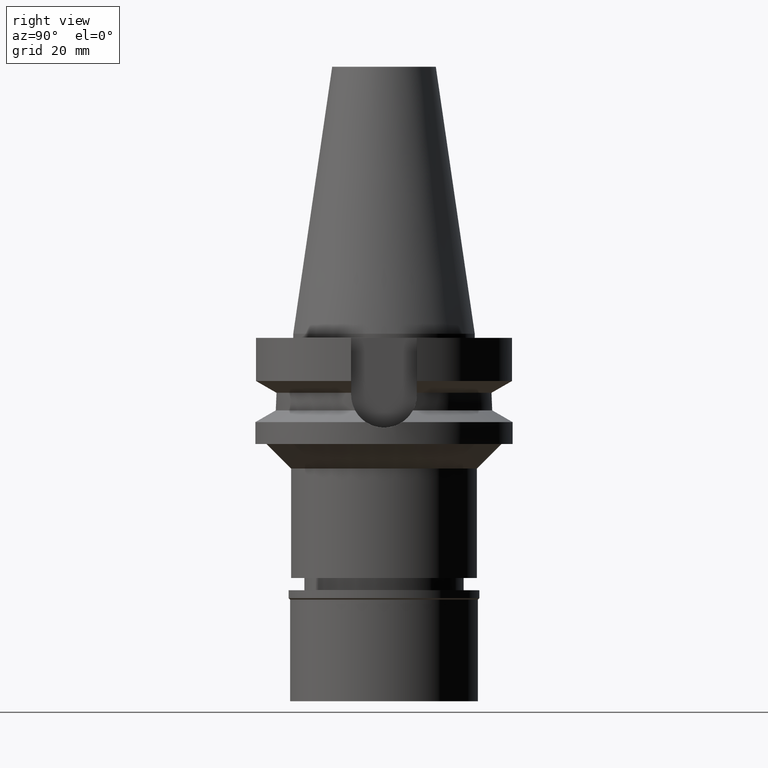
[diagram: clean part render]
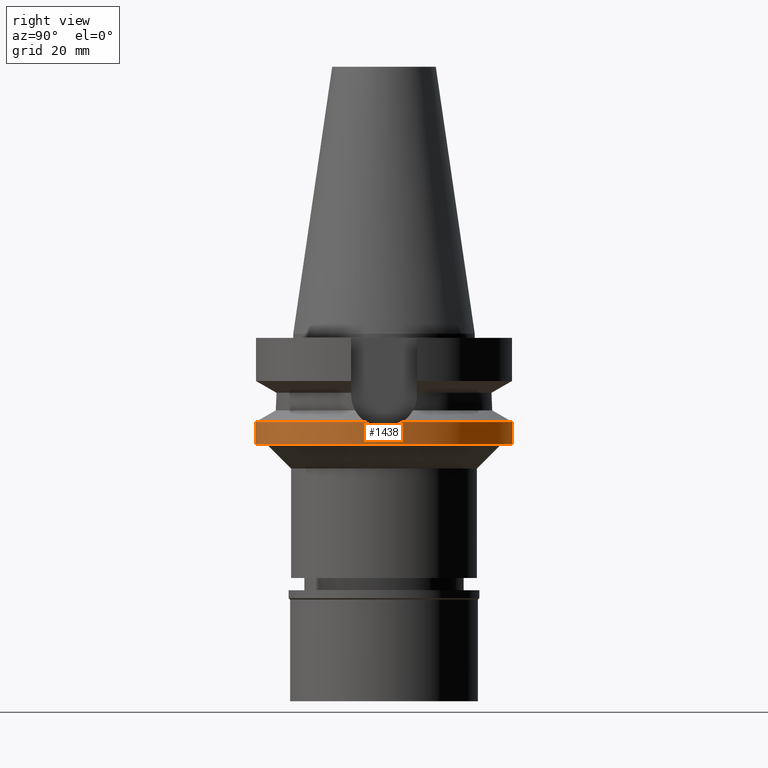
[diagram: same view with one face highlighted and labeled with its STEP entity id]
A machine part, right view. The second image highlights one B-rep face of the part: STEP entity #1438.
In plain terms, the highlighted cylindrical surface (partial cylindrical patch) has radius 31.5 mm, axis along (0, 0, -1).
Its self-contained STEP definition (entity closure, byte-faithful):
#71 = VERTEX_POINT ( 'NONE', #1878 ) ;
#88 = EDGE_CURVE ( 'NONE', #755, #71, #2186, .T. ) ;
#133 = CYLINDRICAL_SURFACE ( 'NONE', #2300, 31.50000000000000000 ) ;
#140 = B_SPLINE_CURVE_WITH_KNOTS ( 'NONE', 3,
 ( #202, #3023, #2805, #1181, #674, #657, #2070, #1654, #1153, #2551, #2099, #3034 ),
 .UNSPECIFIED., .F., .F.,
 ( 4, 2, 2, 2, 2, 4 ),
 ( 0.0000000000000000000, 0.2500000000000002776, 0.5000000000000005551, 0.6250000000000005551, 0.7500000000000005551, 1.000000000000000000 ),
 .UNSPECIFIED. ) ;
#202 = CARTESIAN_POINT ( 'NONE',  ( 31.50000000000000000, 3.533862756661999907E-11, -23.00000000000000000 ) ) ;
#216 = VERTEX_POINT ( 'NONE', #897 ) ;
#301 = CARTESIAN_POINT ( 'NONE',  ( 0.0000000000000000000, -31.50000000000000000, -21.63449434733000132 ) ) ;
#351 = DIRECTION ( 'NONE',  ( 0.0000000000000000000, 0.0000000000000000000, -1.000000000000000000 ) ) ;
#415 = CARTESIAN_POINT ( 'NONE',  ( 0.0000000000000000000, 0.0000000000000000000, -21.63449434733000132 ) ) ;
#471 = EDGE_CURVE ( 'NONE', #2976, #71, #1503, .T. ) ;
#503 = AXIS2_PLACEMENT_3D ( 'NONE', #415, #351, #2269 ) ;
#528 = CARTESIAN_POINT ( 'NONE',  ( 0.0000000000000000000, 0.0000000000000000000, -27.00000000000000000 ) ) ;
#530 = DIRECTION ( 'NONE',  ( 0.0000000000000000000, 0.0000000000000000000, -1.000000000000000000 ) ) ;
#532 = CARTESIAN_POINT ( 'NONE',  ( 31.17899877608999759, 4.485536235554000051, -21.63449434733000132 ) ) ;
#541 = DIRECTION ( 'NONE',  ( 0.0000000000000000000, 0.0000000000000000000, 1.000000000000000000 ) ) ;
#637 = ORIENTED_EDGE ( 'NONE', *, *, #471, .F. ) ;
#657 = CARTESIAN_POINT ( 'NONE',  ( 31.39916047243347563, -2.525684878205869399, -22.59611919899747434 ) ) ;
#674 = CARTESIAN_POINT ( 'NONE',  ( 31.44157562882537960, -1.955191010453578793, -22.76907076798721263 ) ) ;
#678 = ORIENTED_EDGE ( 'NONE', *, *, #1269, .T. ) ;
#709 = VECTOR ( 'NONE', #1945, 1000.000000000000000 ) ;
#755 = VERTEX_POINT ( 'NONE', #827 ) ;
#761 = CARTESIAN_POINT ( 'NONE',  ( 31.49999999999910472, 0.7894177393607471060, -23.00000000000000000 ) ) ;
#767 = CARTESIAN_POINT ( 'NONE',  ( 0.0000000000000000000, 31.50000000000000000, -21.63449434733000132 ) ) ;
#798 = EDGE_CURVE ( 'NONE', #2706, #1239, #2634, .T. ) ;
#827 = CARTESIAN_POINT ( 'NONE',  ( 0.0000000000000000000, -31.50000000000000000, -27.00000000000000000 ) ) ;
#897 = CARTESIAN_POINT ( 'NONE',  ( 31.17899877608999759, 4.485536235554000051, -21.63449434733000132 ) ) ;
#900 = ORIENTED_EDGE ( 'NONE', *, *, #1971, .T. ) ;
#1047 = ORIENTED_EDGE ( 'NONE', *, *, #798, .T. ) ;
#1065 = ORIENTED_EDGE ( 'NONE', *, *, #2061, .T. ) ;
#1153 = CARTESIAN_POINT ( 'NONE',  ( 31.33092021549410688, -3.264435135920803699, -22.31109383950983727 ) ) ;
#1181 = CARTESIAN_POINT ( 'NONE',  ( 31.46324907217566036, -1.570849904353151416, -22.85516693578523117 ) ) ;
#1189 = CARTESIAN_POINT ( 'NONE',  ( 31.50000000000000000, 3.533862756661999907E-11, -23.00000000000000000 ) ) ;
#1221 = CARTESIAN_POINT ( 'NONE',  ( 31.50000000000000000, 3.533862756661999907E-11, -23.00000000000000000 ) ) ;
#1229 = DIRECTION ( 'NONE',  ( 0.0000000000000000000, -1.000000000000000000, 0.0000000000000000000 ) ) ;
#1239 = VERTEX_POINT ( 'NONE', #301 ) ;
#1269 = EDGE_CURVE ( 'NONE', #1239, #755, #2164, .T. ) ;
#1271 = CARTESIAN_POINT ( 'NONE',  ( 0.0000000000000000000, -31.50000000000000000, -21.63449434733000132 ) ) ;
#1360 = B_SPLINE_CURVE_WITH_KNOTS ( 'NONE', 3,
 ( #532, #2646, #2198, #2460, #761, #1221 ),
 .UNSPECIFIED., .F., .F.,
 ( 4, 2, 4 ),
 ( 0.0000000000000000000, 0.5000000000000000000, 1.000000000000000000 ),
 .UNSPECIFIED. ) ;
#1438 = ADVANCED_FACE ( 'NONE', ( #1803 ), #133, .T. ) ;
#1503 = LINE ( 'NONE', #767, #709 ) ;
#1544 = DIRECTION ( 'NONE',  ( 0.0000000000000000000, 0.0000000000000000000, -1.000000000000000000 ) ) ;
#1646 = AXIS2_PLACEMENT_3D ( 'NONE', #528, #541, #1229 ) ;
#1654 = CARTESIAN_POINT ( 'NONE',  ( 31.34929754645547106, -3.083187842819544500, -22.38882524538810870 ) ) ;
#1664 = CIRCLE ( 'NONE', #2699, 31.50000000000000000 ) ;
#1696 = DIRECTION ( 'NONE',  ( 0.0000000000000000000, -1.099151708819000049E-13, -1.000000000000000000 ) ) ;
#1803 = FACE_OUTER_BOUND ( 'NONE', #1990, .T. ) ;
#1878 = CARTESIAN_POINT ( 'NONE',  ( 0.0000000000000000000, 31.50000000000000000, -27.00000000000000000 ) ) ;
#1945 = DIRECTION ( 'NONE',  ( 0.0000000000000000000, 1.099151708819000049E-13, -1.000000000000000000 ) ) ;
#1971 = EDGE_CURVE ( 'NONE', #2976, #216, #1664, .T. ) ;
#1990 = EDGE_LOOP ( 'NONE', ( #1047, #678, #2388, #637, #900, #1065, #2471 ) ) ;
#2061 = EDGE_CURVE ( 'NONE', #216, #2563, #1360, .T. ) ;
#2070 = CARTESIAN_POINT ( 'NONE',  ( 31.38347861103886416, -2.713258963087467723, -22.53160019907696210 ) ) ;
#2099 = CARTESIAN_POINT ( 'NONE',  ( 31.22673699980570206, -4.153707455094773238, -21.85716339923033402 ) ) ;
#2164 = LINE ( 'NONE', #1271, #2339 ) ;
#2170 = CARTESIAN_POINT ( 'NONE',  ( 31.17899877608999759, -4.485536235554000051, -21.63449434733000132 ) ) ;
#2186 = CIRCLE ( 'NONE', #1646, 31.50000000000000000 ) ;
#2198 = CARTESIAN_POINT ( 'NONE',  ( 31.35693800405108789, 3.093611842330725725, -22.42394393125410090 ) ) ;
#2223 = CARTESIAN_POINT ( 'NONE',  ( 0.0000000000000000000, 0.0000000000000000000, 0.0000000000000000000 ) ) ;
#2269 = DIRECTION ( 'NONE',  ( 0.9898094849552905306, -0.1423979757318985240, 0.0000000000000000000 ) ) ;
#2300 = AXIS2_PLACEMENT_3D ( 'NONE', #2223, #530, #2317 ) ;
#2317 = DIRECTION ( 'NONE',  ( 0.0000000000000000000, -1.000000000000000000, 0.0000000000000000000 ) ) ;
#2339 = VECTOR ( 'NONE', #1696, 1000.000000000000000 ) ;
#2388 = ORIENTED_EDGE ( 'NONE', *, *, #88, .T. ) ;
#2460 = CARTESIAN_POINT ( 'NONE',  ( 31.46967100746108414, 1.577276736363816712, -22.88364154530529504 ) ) ;
#2471 = ORIENTED_EDGE ( 'NONE', *, *, #2970, .T. ) ;
#2489 = DIRECTION ( 'NONE',  ( 0.0000000000000000000, 1.000000000000000000, 0.0000000000000000000 ) ) ;
#2551 = CARTESIAN_POINT ( 'NONE',  ( 31.27122531430636698, -3.806948984035791295, -22.05414690376283460 ) ) ;
#2563 = VERTEX_POINT ( 'NONE', #1189 ) ;
#2634 = CIRCLE ( 'NONE', #503, 31.50000000000001421 ) ;
#2646 = CARTESIAN_POINT ( 'NONE',  ( 31.27447205696366694, 3.821900685391772523, -22.07981768112152920 ) ) ;
#2699 = AXIS2_PLACEMENT_3D ( 'NONE', #2722, #1544, #2489 ) ;
#2706 = VERTEX_POINT ( 'NONE', #2170 ) ;
#2722 = CARTESIAN_POINT ( 'NONE',  ( 0.0000000000000000000, 0.0000000000000000000, -21.63449434733000132 ) ) ;
#2805 = CARTESIAN_POINT ( 'NONE',  ( 31.49259283297665135, -0.7875330190645301043, -22.97108977994176371 ) ) ;
#2970 = EDGE_CURVE ( 'NONE', #2563, #2706, #140, .T. ) ;
#2976 = VERTEX_POINT ( 'NONE', #3006 ) ;
#3006 = CARTESIAN_POINT ( 'NONE',  ( 0.0000000000000000000, 31.50000000000000000, -21.63449434733000132 ) ) ;
#3023 = CARTESIAN_POINT ( 'NONE',  ( 31.50000000000043698, -0.3946959785271167420, -23.00000000000000355 ) ) ;
#3034 = CARTESIAN_POINT ( 'NONE',  ( 31.17899877608999759, -4.485536235554000051, -21.63449434733000132 ) ) ;